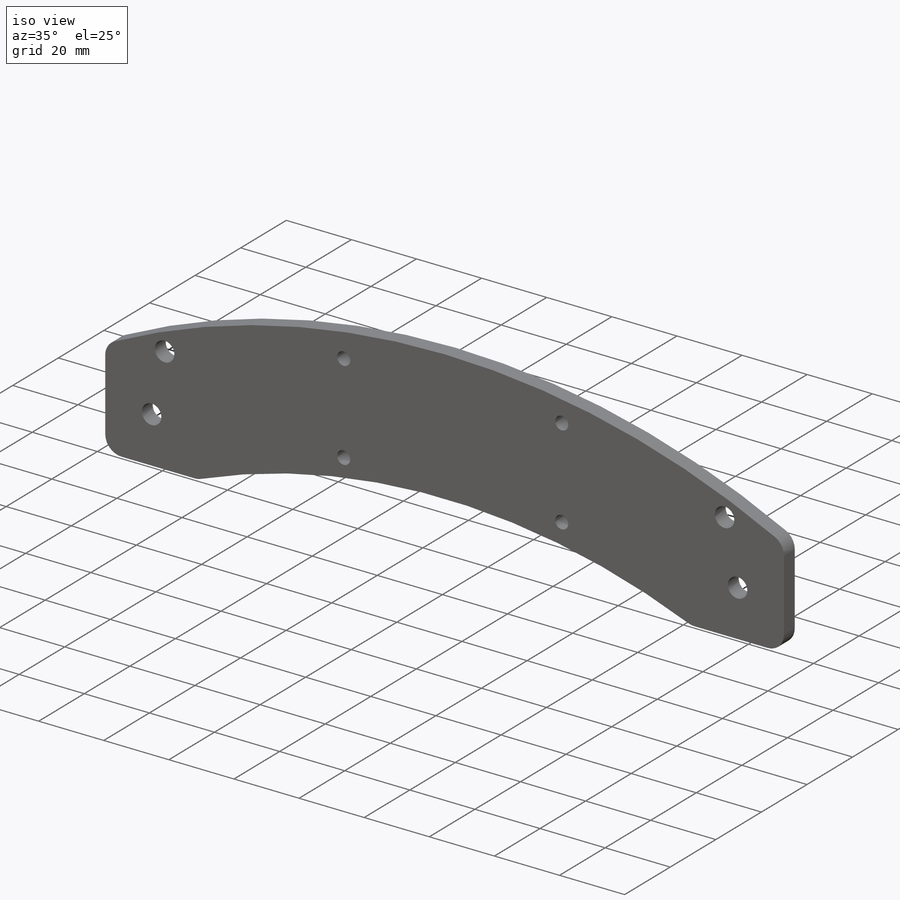
[diagram: iso view]
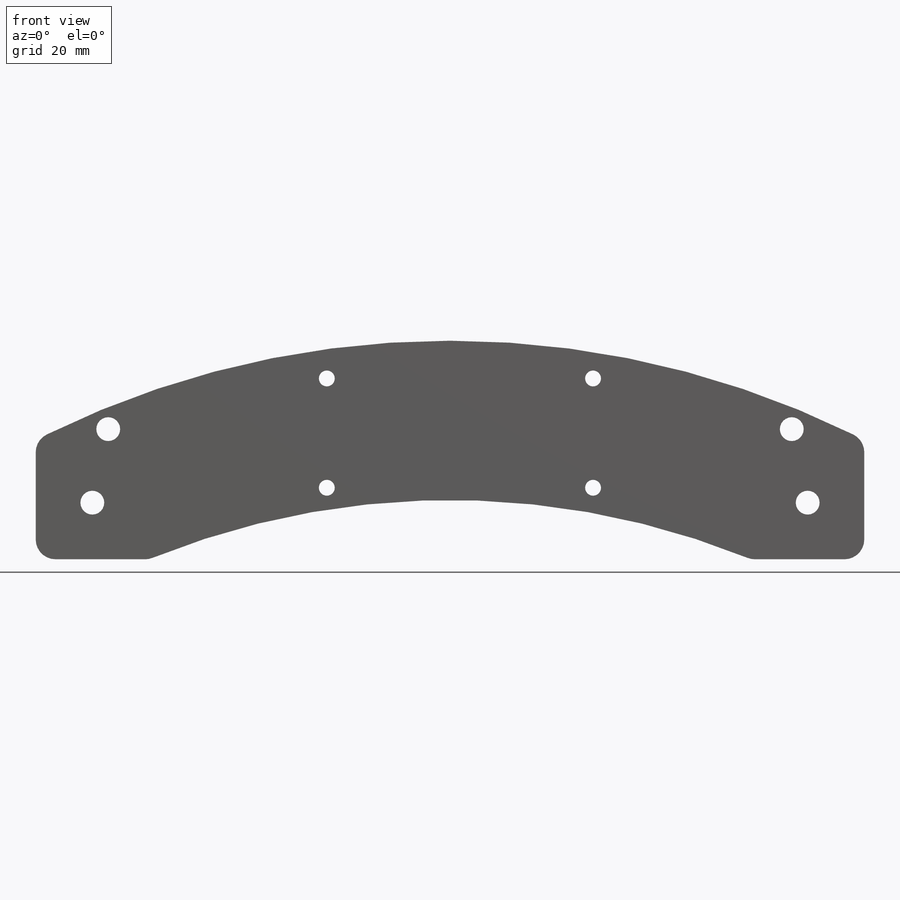
[diagram: front view]
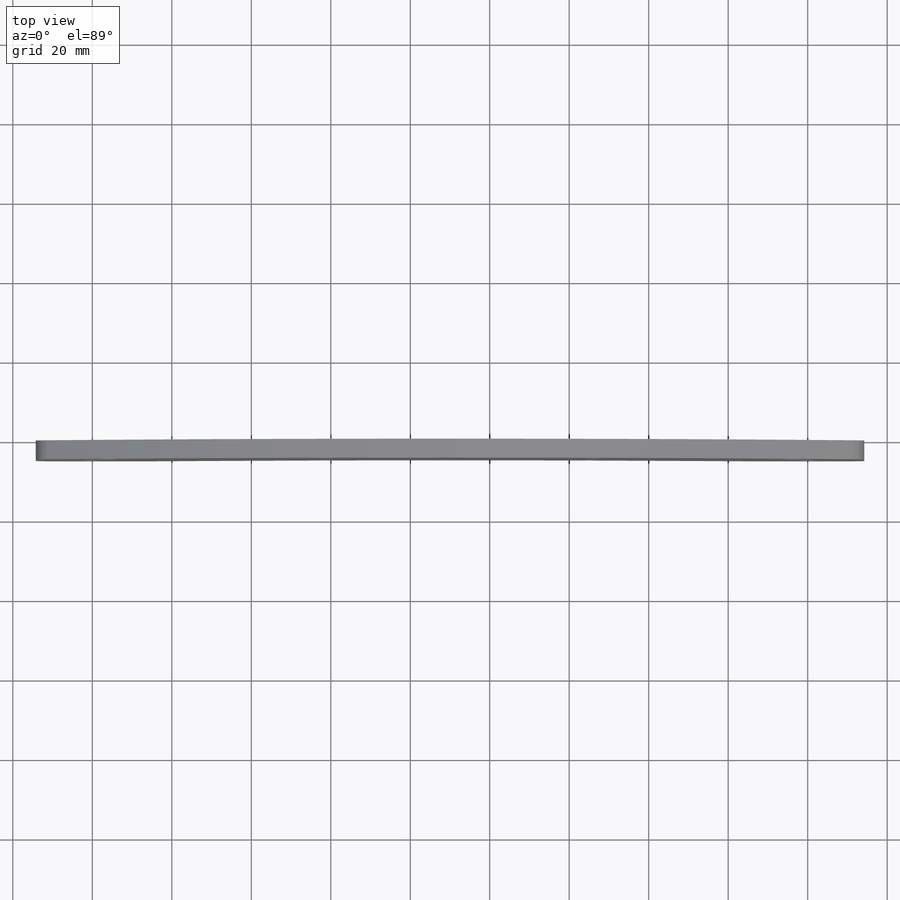
[diagram: top view]
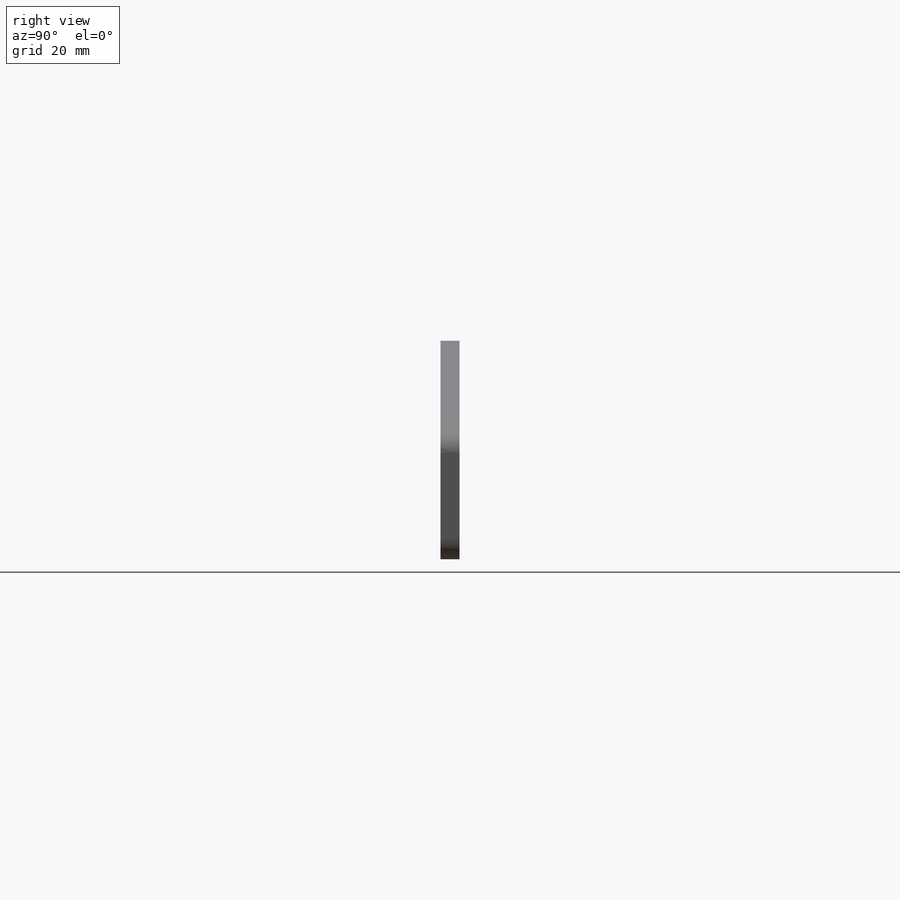
[diagram: right view]
SOLIDWORKS PART (.sldprt)
format: sldprt  version: not decoded by parser v0  size: 269,824 bytes
history: native  units: mm
features: sketch x3, cut_extrude x2, material x1, extrude x1 (+11 scaffold rows collapsed)
feature tree (18):
  scaffold x11  (default folders/planes/origin — collapsed)
  material  "Material <not specified>"
  sketch  "Sketch1"  dims[c1.D1=6.0mm c1.D2=4.0mm c1.D3=200.0mm c1.D4=175.0mm c1.D5=6.0mm c1.D6=230.0mm c1.D7=5.0mm c1.D8=5.0mm c1.D9=5.0mm c1.D10=5.0mm c2.D5=18.5mm c2.D6=6.0mm c2.D4=55.0mm c2.D11=14.25mm c2.D12=14.25mm c2.D13=208.5mm c2.D14=~22.522792mm]
  extrude  "Boss-Extrude1"  Depth=4.7625mm
  sketch  "Sketch3"  dims[c1.D6=6.0mm c1.D8=4.0mm c1.D13=5.0mm c1.D14=3.0mm c1.D15=5.0mm c1.D17=4.0mm c1.D18=5.0mm c1.D3=8.0mm c1.D4=8.0mm c1.D5=8.0mm c2.D6=8.0mm c2.D7=6.0mm c2.D8=6.0mm c2.D9=6.0mm c2.D10=3.0mm c2.D11=3.0mm c2.D12=6.0mm c3.D9=3.0mm c3.D10=6.0mm c3.D16=6.0mm c3.D17=6.0mm c3.D1=6.0mm c3.D2=6.0mm]
  cut_extrude  "Cut-Extrude1"  Depth=2mm
  sketch  "Sketch4"  dims[D1=20.0mm]
  cut_extrude  "Cut-Extrude2"  Depth=0.01mm
decode coverage: 6 of 6 modeling features carry decoded parameters
note: ~ marks probable driven/reference dimensions
note: suppression state not decoded; provenance and decode notes live in map.json
